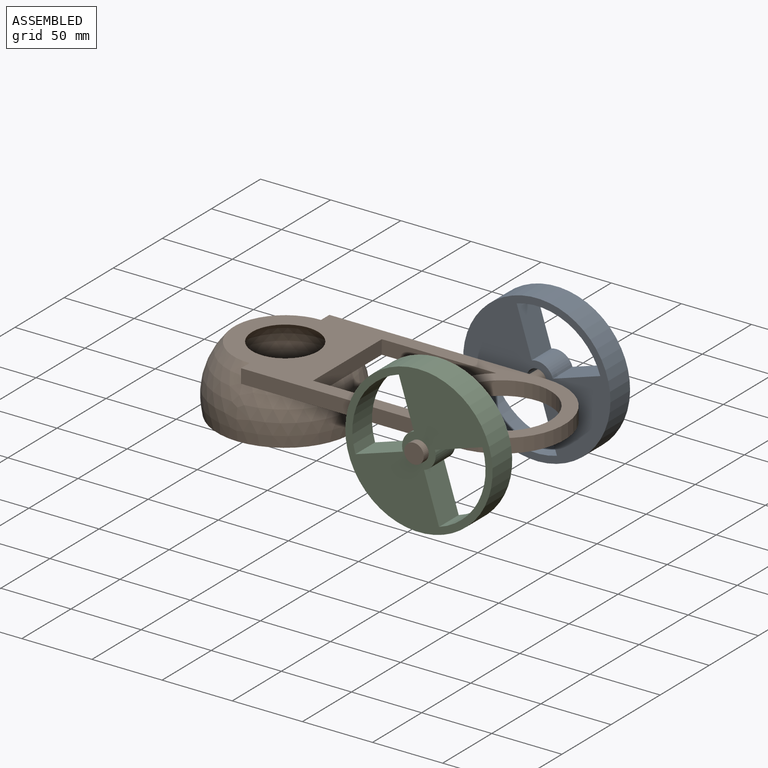
[diagram: assembled view]
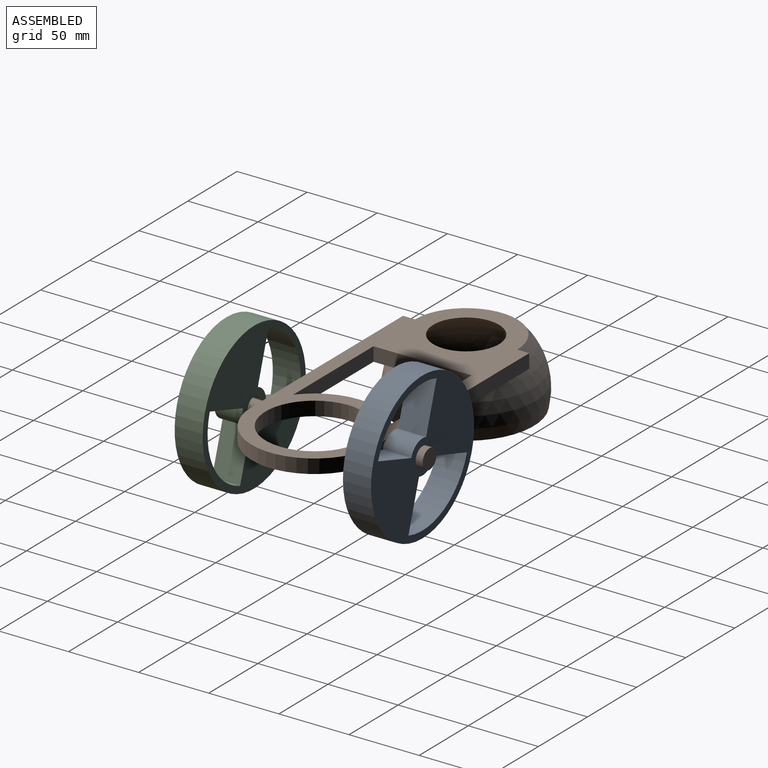
[diagram: assembled view, second angle]
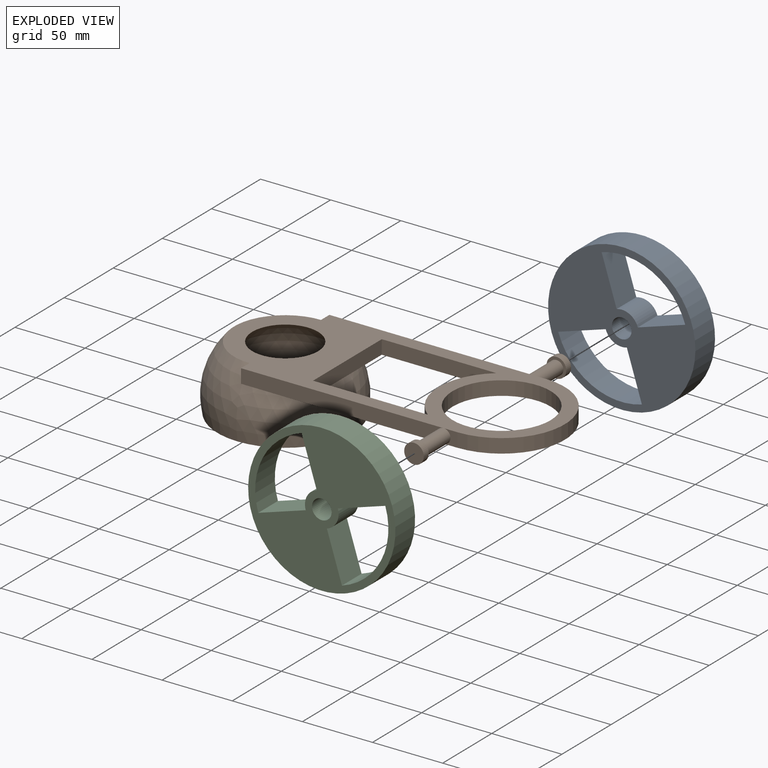
[diagram: exploded view]
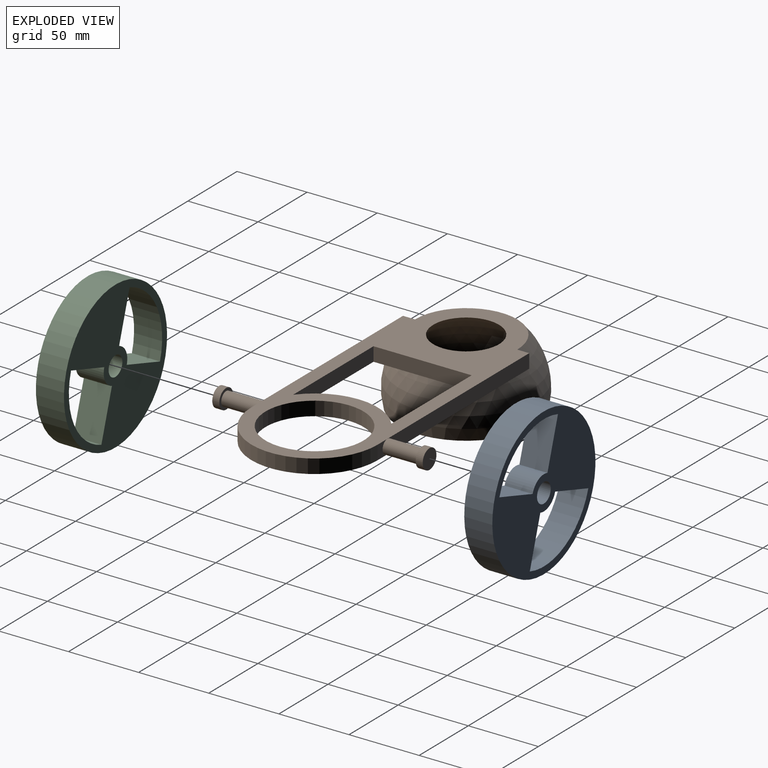
[diagram: exploded view, second angle]
ASSEMBLY  parts=3 mates=2
PART A: 12 faces, bbox 105x20x105 mm
  f0: plane 105x105mm, normal (0,1,0), area 5187.2mm2, adj f2,f3,f4,f5,f6,f7,f8,f9
  f1: plane 105x105mm, normal (0,-1,0), area 5187.2mm2, adj f2,f3,f4,f5,f6,f7,f8,f9
  f2: cylinder r=7mm len=20mm, axis (0,-1,0), area 879.6mm2, adj f0,f1
  f3: cylinder r=52.5mm len=105mm, axis (0,-1,0), area 6597.3mm2, adj f0,f1
  f4: plane 35.5x20mm, normal (1,0,0), area 710mm2, adj f0,f1,f5,f7
  f5: cylinder r=12mm len=20mm, axis (0,-1,0), area 377mm2, adj f0,f1,f4,f6
  f6: plane 35.5x20mm, normal (0,0,1), area 710mm2, adj f0,f1,f5,f7
  f7: cylinder r=47.5mm len=47.5mm, axis (0,-1,0), area 1492.3mm2, adj f0,f1,f4,f6
  f8: plane 35.5x20mm, normal (0,0,-1), area 710mm2, adj f0,f1,f9,f10
  f9: cylinder r=12mm len=20mm, axis (0,-1,0), area 377mm2, adj f0,f1,f8,f11
  f10: cylinder r=47.5mm len=47.5mm, axis (0,-1,0), area 1492.3mm2, adj f0,f1,f8,f11
  f11: plane 35.5x20mm, normal (-1,0,0), area 710mm2, adj f0,f1,f9,f10
PART B: 25 faces, bbox 249.2x150x48 mm
  f0: plane 14x14mm, normal (0,1,0), area 153.9mm2, adj f2
  f1: plane 14x14mm, normal (0,-1,0), area 75.4mm2, adj f2,f24
  f2: cylinder r=7mm len=14mm, axis (0,-1,0), area 219.9mm2, adj f0,f1
  f3: sphere r=49.81mm, area 12819.5mm2, adj f10,f11,f12,f15,f16
  f4: sphere r=41.27mm, area 11918.9mm2, adj f10,f11
  f5: cylinder r=7mm len=14mm, axis (0,1,0), area 219.9mm2, adj f6,f7
  f6: plane 14x14mm, normal (0,-1,0), area 153.9mm2, adj f5
  f7: plane 14x14mm, normal (0,1,0), area 75.4mm2, adj f5,f23
  f8: plane 10x10mm, normal (0,1,0), area 60.7mm2, adj f10,f12,f21,f24
  f9: plane 10x10mm, normal (0,-1,0), area 60.7mm2, adj f10,f12,f21,f23
  f10: plane 235.79x90mm, normal (0,0,1), area 8676.1mm2, adj f3,f4,f8,f9,f13,f14,f15,f16
  f11: plane 96.69x96.69mm, normal (0,0,-1), area 2443.2mm2, adj f3,f4
  f12: plane 199.35x90mm, normal (0,0,-1), area 5322.9mm2, adj f3,f8,f9,f13,f14,f15,f16,f17
  f13: plane 144.35x10mm, normal (0,-1,0), area 1404.2mm2, adj f10,f12,f16,f23
  f14: plane 144.35x10mm, normal (0,1,0), area 1404.2mm2, adj f10,f12,f15,f24
  f15: plane 10x8.56mm, normal (-1,0,0), area 46.3mm2, adj f3,f10,f12,f14
  f16: plane 10x8.56mm, normal (-1,0,0), area 46.3mm2, adj f3,f10,f12,f13
  f17: plane 81.72x10mm, normal (0,1,0), area 817.2mm2, adj f10,f12,f18,f22
  f18: plane 70x10mm, normal (1,0,0), area 700mm2, adj f10,f12,f17,f19
  f19: plane 81.72x10mm, normal (0,-1,0), area 817.2mm2, adj f10,f12,f18,f22
  f20: cylinder r=35mm len=70mm, axis (0,0,1), area 2199.1mm2, adj f10,f12
  f21: cylinder r=45mm len=90mm, axis (0,0,1), area 1413.7mm2, adj f8,f9,f10,f12
  f22: cylinder r=45mm len=70mm, axis (0,0,1), area 802mm2, adj f10,f12,f17,f19
  f23: cylinder r=5mm len=25mm, axis (0,1,0), area 785.4mm2, adj f7,f9,f13
  f24: cylinder r=5mm len=25mm, axis (0,-1,0), area 785.4mm2, adj f1,f8,f14
PART C: same geometry as A
PLACE A rot(axis=(0.59,0,0.81),180deg) t=(77.36,65.32,-31.57)mm
PLACE B t=(-83.03,65.32,85.82)mm fixed
PLACE C rot(axis=(0,-1,0),107.6deg) t=(132.58,65.32,-14.06)mm
MATE revolute A.f2 <-> B.f2  axis (0,1,0) through (61.32,135.32,114.78)mm
MATE revolute C.f2 <-> B.f2  axis (0,-1,0) through (61.32,-4.68,114.78)mm
